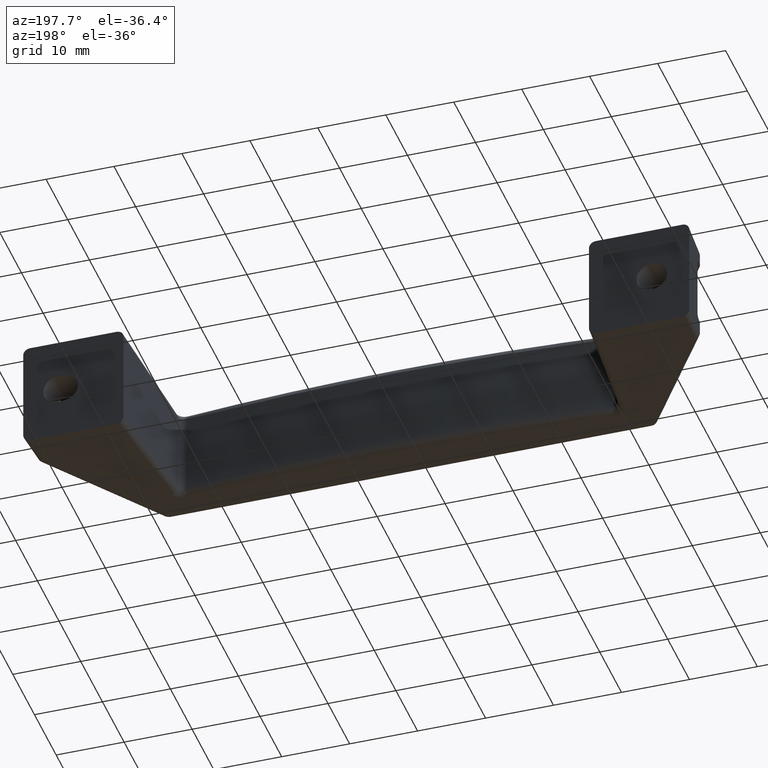
[diagram: clean part render]
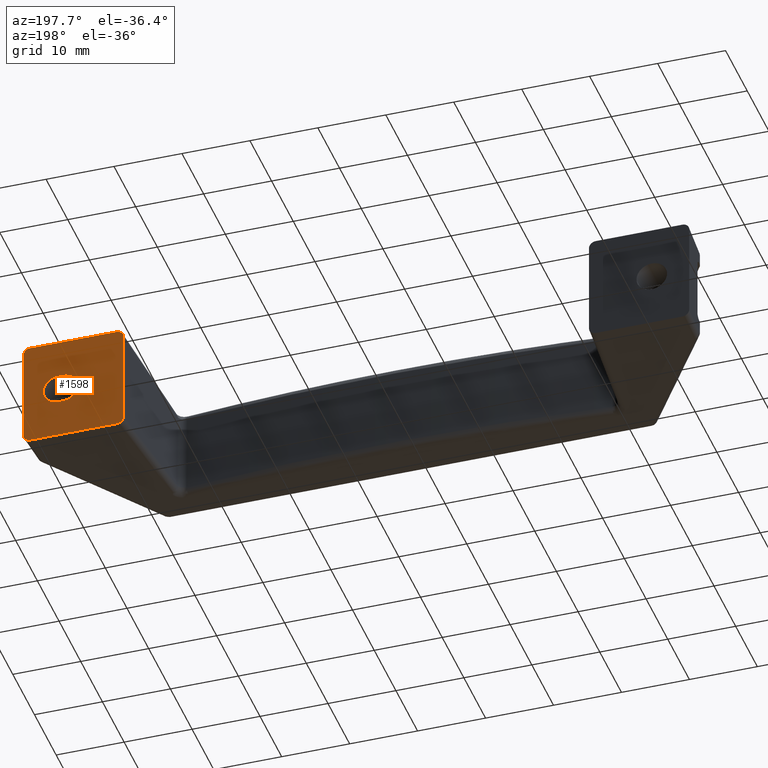
[diagram: same view with one face highlighted and labeled with its STEP entity id]
A machine part, auxiliary view. The second image highlights one B-rep face of the part: STEP entity #1598.
In plain terms, the highlighted face is a freeform B-spline surface patch.
Its self-contained STEP definition (entity closure, byte-faithful):
#315=CARTESIAN_POINT('',(87.299999999999997,0.0,-2.250000000000200));
#316=VERTEX_POINT('',#315);
#317=CARTESIAN_POINT('',(87.299999999999997,0.0,2.249999999999885));
#318=VERTEX_POINT('',#317);
#319=CARTESIAN_POINT('',(87.299999999999997,0.0,-2.250000000000200));
#320=CARTESIAN_POINT('',(87.539307923085943,0.0,-2.250147271162030));
#321=CARTESIAN_POINT('',(87.944171931167958,0.0,-2.184740013438614));
#322=CARTESIAN_POINT('',(88.483018618036510,0.0,-1.937972071733876));
#323=CARTESIAN_POINT('',(88.863166219857547,0.0,-1.641264053359105));
#324=CARTESIAN_POINT('',(89.172455716507415,0.0,-1.273676785063370));
#325=CARTESIAN_POINT('',(89.386775493231170,0.0,-0.884266619244175));
#326=CARTESIAN_POINT('',(89.537127457886825,0.0,-0.388670093009255));
#327=CARTESIAN_POINT('',(89.574880939751210,0.0,0.223194870886844));
#328=CARTESIAN_POINT('',(89.411451168672528,0.0,0.875522613477442));
#329=CARTESIAN_POINT('',(89.089748077995736,0.0,1.397364877877063));
#330=CARTESIAN_POINT('',(88.684277904981997,0.0,1.802850612362757));
#331=CARTESIAN_POINT('',(88.109755334860850,0.0,2.147325972719868));
#332=CARTESIAN_POINT('',(87.594543858261105,0.0,2.250300899630097));
#333=CARTESIAN_POINT('',(87.299999999999997,0.0,2.249999999999885));
#334=B_SPLINE_CURVE_WITH_KNOTS('',3,(#319,#320,#321,#322,#323,#324,#325,#326,#327,#328,#329,#330,#331,#332,#333),.UNSPECIFIED.,.F.,.U.,(4,1,1,1,1,1,1,1,1,1,1,1,4),(0.000000144538792,0.717884109714858,1.214925076665320,1.767192675288920,2.153783143785306,2.650824454171176,3.092609836100341,3.700049248975489,4.473194944110736,5.080664333422702,5.522478425201033,6.185208433215752,7.068760850350008),.UNSPECIFIED.);
#335=EDGE_CURVE('',#316,#318,#334,.T.);
#356=CARTESIAN_POINT('',(86.700000000000003,0.0,-2.250000000000140));
#357=VERTEX_POINT('',#356);
#358=CARTESIAN_POINT('',(86.700000000000003,0.0,-2.250000000000140));
#359=CARTESIAN_POINT('',(87.299999999999997,0.0,-2.250000000000200));
#360=QUASI_UNIFORM_CURVE('',1,(#358,#359),.UNSPECIFIED.,.F.,.U.);
#361=EDGE_CURVE('',#357,#316,#360,.T.);
#391=CARTESIAN_POINT('',(86.700000000000003,0.0,2.249999999999915));
#392=VERTEX_POINT('',#391);
#393=CARTESIAN_POINT('',(86.700000000000003,0.0,2.249999999999915));
#394=CARTESIAN_POINT('',(86.497513270980178,0.0,2.250062690083766));
#395=CARTESIAN_POINT('',(86.129388087472179,0.0,2.199966921130759));
#396=CARTESIAN_POINT('',(85.647899642573492,0.0,2.007398319097506));
#397=CARTESIAN_POINT('',(85.232654945452168,0.0,1.729933535963330));
#398=CARTESIAN_POINT('',(84.823256254601546,0.0,1.300188174948711));
#399=CARTESIAN_POINT('',(84.512468318525450,0.0,0.682784002941830));
#400=CARTESIAN_POINT('',(84.424766952228282,0.0,0.036220740914196));
#401=CARTESIAN_POINT('',(84.490526060960477,0.0,-0.496141333956006));
#402=CARTESIAN_POINT('',(84.635548263805191,0.0,-0.935224418472826));
#403=CARTESIAN_POINT('',(84.868702134657354,0.0,-1.335262273373308));
#404=CARTESIAN_POINT('',(85.191665742779620,0.0,-1.691603581821033));
#405=CARTESIAN_POINT('',(85.551919549620678,0.0,-1.951980302930237));
#406=CARTESIAN_POINT('',(86.055854257732051,0.0,-2.182830913355766));
#407=CARTESIAN_POINT('',(86.442273961952921,0.0,-2.250184843038674));
#408=CARTESIAN_POINT('',(86.700000000000003,0.0,-2.250000000000140));
#409=B_SPLINE_CURVE_WITH_KNOTS('',3,(#393,#394,#395,#396,#397,#398,#399,#400,#401,#402,#403,#404,#405,#406,#407,#408),.UNSPECIFIED.,.F.,.U.,(4,1,1,1,1,1,1,1,1,1,1,1,1,4),(0.000000144542031,0.607464018945322,1.104493495329543,1.546291679146144,2.098552318772724,2.871733636990950,3.589606225601981,4.031354717545032,4.473194944111484,4.970220925834719,5.412022455877325,5.909046098120776,6.295660019799612,7.068760850350072),.UNSPECIFIED.);
#410=EDGE_CURVE('',#392,#357,#409,.T.);
#427=CARTESIAN_POINT('',(87.299999999999997,0.0,2.249999999999885));
#428=CARTESIAN_POINT('',(86.700000000000003,0.0,2.249999999999915));
#429=QUASI_UNIFORM_CURVE('',1,(#427,#428),.UNSPECIFIED.,.F.,.U.);
#430=EDGE_CURVE('',#318,#392,#429,.T.);
#1025=CARTESIAN_POINT('',(77.750000000000000,0.0,6.993604590958550));
#1026=VERTEX_POINT('',#1025);
#1027=CARTESIAN_POINT('',(77.750000000000000,0.0,-6.993604590958770));
#1028=VERTEX_POINT('',#1027);
#1029=CARTESIAN_POINT('',(77.750000000000000,0.0,6.993604590958550));
#1030=CARTESIAN_POINT('',(77.750000000000000,0.0,-6.993604590958770));
#1031=QUASI_UNIFORM_CURVE('',1,(#1029,#1030),.UNSPECIFIED.,.F.,.U.);
#1032=EDGE_CURVE('',#1026,#1028,#1031,.T.);
#1434=CARTESIAN_POINT('',(92.499999999973696,0.0,-7.001370465245270));
#1435=VERTEX_POINT('',#1434);
#1441=CARTESIAN_POINT('',(92.499999999973696,0.0,7.001370465245070));
#1442=VERTEX_POINT('',#1441);
#1443=CARTESIAN_POINT('',(92.499999999973696,0.0,-7.001370465245270));
#1444=CARTESIAN_POINT('',(92.499999999973696,0.0,7.001370465245070));
#1445=QUASI_UNIFORM_CURVE('',1,(#1443,#1444),.UNSPECIFIED.,.F.,.U.);
#1446=EDGE_CURVE('',#1435,#1442,#1445,.T.);
#1519=CARTESIAN_POINT('',(77.013237528589670,0.0,8.799199968988685));
#1520=CARTESIAN_POINT('',(77.013237528589670,0.0,-8.799200398142329));
#1521=CARTESIAN_POINT('',(93.236762867009872,0.0,8.799199968988685));
#1522=CARTESIAN_POINT('',(93.236762867009872,0.0,-8.799200398142329));
#1523=B_SPLINE_SURFACE_WITH_KNOTS('',1,1,((#1519,#1521),(#1520,#1522)),.UNSPECIFIED.,.F.,.F.,.U.,(2,2),(2,2),(0.0,17.598400367131010),(0.0,16.223525338420199),.UNSPECIFIED.);
#1524=ORIENTED_EDGE('',*,*,#1446,.F.);
#1525=CARTESIAN_POINT('',(91.501370465219210,0.0,-8.0));
#1526=VERTEX_POINT('',#1525);
#1527=CARTESIAN_POINT('',(92.499999999973696,0.0,-7.001370465245270));
#1528=CARTESIAN_POINT('',(92.499999999973696,0.0,-8.000000000000078));
#1529=CARTESIAN_POINT('',(91.501370465219210,0.0,-8.0));
#1537=(BOUNDED_CURVE()B_SPLINE_CURVE(2,(#1527,#1528,#1529),.UNSPECIFIED.,.F.,.U.)CURVE()GEOMETRIC_REPRESENTATION_ITEM()QUASI_UNIFORM_CURVE()RATIONAL_B_SPLINE_CURVE((1.0,0.708074520201013,1.0))REPRESENTATION_ITEM(''));
#1538=EDGE_CURVE('',#1435,#1526,#1537,.T.);
#1539=ORIENTED_EDGE('',*,*,#1538,.T.);
#1540=CARTESIAN_POINT('',(78.759664474064010,0.0,-8.0));
#1541=VERTEX_POINT('',#1540);
#1542=CARTESIAN_POINT('',(91.501370465219210,0.0,-8.0));
#1543=CARTESIAN_POINT('',(78.759664474064010,0.0,-8.0));
#1544=QUASI_UNIFORM_CURVE('',1,(#1542,#1543),.UNSPECIFIED.,.F.,.U.);
#1545=EDGE_CURVE('',#1526,#1541,#1544,.T.);
#1546=ORIENTED_EDGE('',*,*,#1545,.T.);
#1547=CARTESIAN_POINT('',(78.759664474064010,0.0,-8.0));
#1548=CARTESIAN_POINT('',(78.594668229889436,0.0,-8.000320422743114));
#1549=CARTESIAN_POINT('',(78.347738338045261,0.0,-7.937941950125574));
#1550=CARTESIAN_POINT('',(78.041664060884870,0.0,-7.723231579648155));
#1551=CARTESIAN_POINT('',(77.817391304767114,0.0,-7.430306944821435));
#1552=CARTESIAN_POINT('',(77.749714581812100,0.0,-7.150323309599737));
#1553=CARTESIAN_POINT('',(77.750000000000000,0.0,-6.993604590958770));
#1554=B_SPLINE_CURVE_WITH_KNOTS('',3,(#1547,#1548,#1549,#1550,#1551,#1552,#1553),.UNSPECIFIED.,.F.,.U.,(4,1,1,1,4),(-0.000001228622620,0.494720822003941,0.742099393003023,1.113104597367352,1.583091821979743),.UNSPECIFIED.);
#1555=EDGE_CURVE('',#1541,#1028,#1554,.T.);
#1556=ORIENTED_EDGE('',*,*,#1555,.T.);
#1557=ORIENTED_EDGE('',*,*,#1032,.F.);
#1558=CARTESIAN_POINT('',(78.759664474064095,0.0,7.999999999999799));
#1559=VERTEX_POINT('',#1558);
#1560=CARTESIAN_POINT('',(77.750000000000000,0.0,6.993604590958550));
#1561=CARTESIAN_POINT('',(77.749977706039530,0.0,7.100777685082202));
#1562=CARTESIAN_POINT('',(77.790094801401338,0.0,7.348179632085962));
#1563=CARTESIAN_POINT('',(77.977762415691600,0.0,7.667854472281652));
#1564=CARTESIAN_POINT('',(78.314750721089297,0.0,7.929690136276322));
#1565=CARTESIAN_POINT('',(78.594696761754292,0.0,8.000302502071246));
#1566=CARTESIAN_POINT('',(78.759664474064095,0.0,7.999999999999799));
#1567=B_SPLINE_CURVE_WITH_KNOTS('',3,(#1560,#1561,#1562,#1563,#1564,#1565,#1566),.UNSPECIFIED.,.F.,.U.,(4,1,1,1,4),(0.000000324535870,0.321558297082561,0.742096323923281,1.088370256719673,1.583091821979626),.UNSPECIFIED.);
#1568=EDGE_CURVE('',#1026,#1559,#1567,.T.);
#1569=ORIENTED_EDGE('',*,*,#1568,.T.);
#1570=CARTESIAN_POINT('',(91.501370465219409,0.0,7.999999999999799));
#1571=VERTEX_POINT('',#1570);
#1572=CARTESIAN_POINT('',(91.501370465219409,0.0,7.999999999999799));
#1573=CARTESIAN_POINT('',(78.759664474064095,0.0,7.999999999999799));
#1574=QUASI_UNIFORM_CURVE('',1,(#1572,#1573),.UNSPECIFIED.,.F.,.U.);
#1575=EDGE_CURVE('',#1571,#1559,#1574,.T.);
#1576=ORIENTED_EDGE('',*,*,#1575,.F.);
#1577=CARTESIAN_POINT('',(91.501370465219409,0.0,7.999999999999803));
#1578=CARTESIAN_POINT('',(92.499999999974207,0.0,7.999999999999781));
#1579=CARTESIAN_POINT('',(92.499999999973966,0.0,7.001370465244812));
#1587=(BOUNDED_CURVE()B_SPLINE_CURVE(2,(#1577,#1578,#1579),.UNSPECIFIED.,.F.,.U.)CURVE()GEOMETRIC_REPRESENTATION_ITEM()QUASI_UNIFORM_CURVE()RATIONAL_B_SPLINE_CURVE((1.0,0.708074520200900,1.0))REPRESENTATION_ITEM(''));
#1588=EDGE_CURVE('',#1571,#1442,#1587,.T.);
#1589=ORIENTED_EDGE('',*,*,#1588,.T.);
#1590=EDGE_LOOP('',(#1524,#1539,#1546,#1556,#1557,#1569,#1576,#1589));
#1591=FACE_OUTER_BOUND('',#1590,.T.);
#1592=ORIENTED_EDGE('',*,*,#430,.T.);
#1593=ORIENTED_EDGE('',*,*,#410,.T.);
#1594=ORIENTED_EDGE('',*,*,#361,.T.);
#1595=ORIENTED_EDGE('',*,*,#335,.T.);
#1596=EDGE_LOOP('',(#1592,#1593,#1594,#1595));
#1597=FACE_BOUND('',#1596,.T.);
#1598=ADVANCED_FACE('',(#1591,#1597),#1523,.F.);